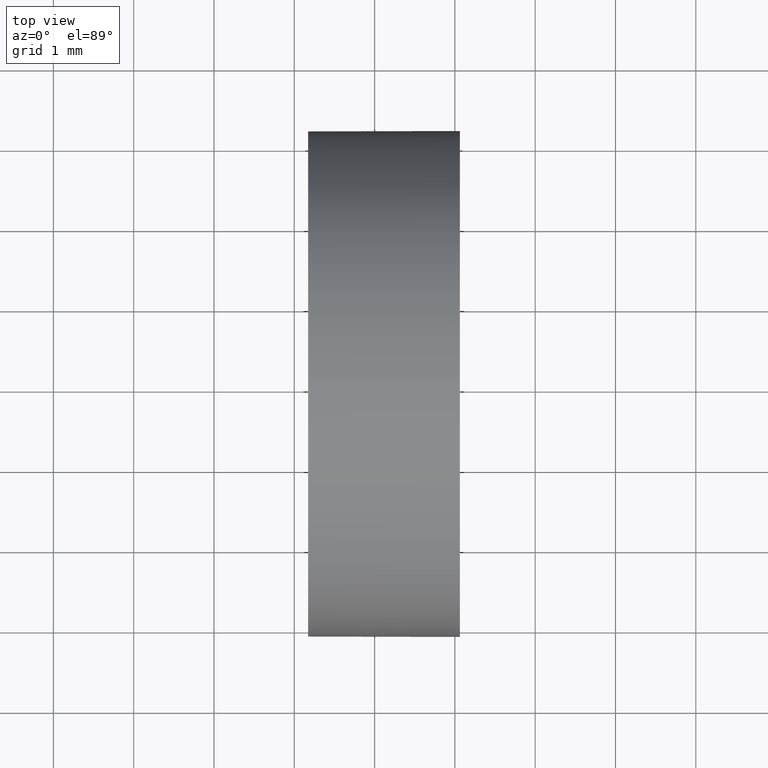
[diagram: clean part render]
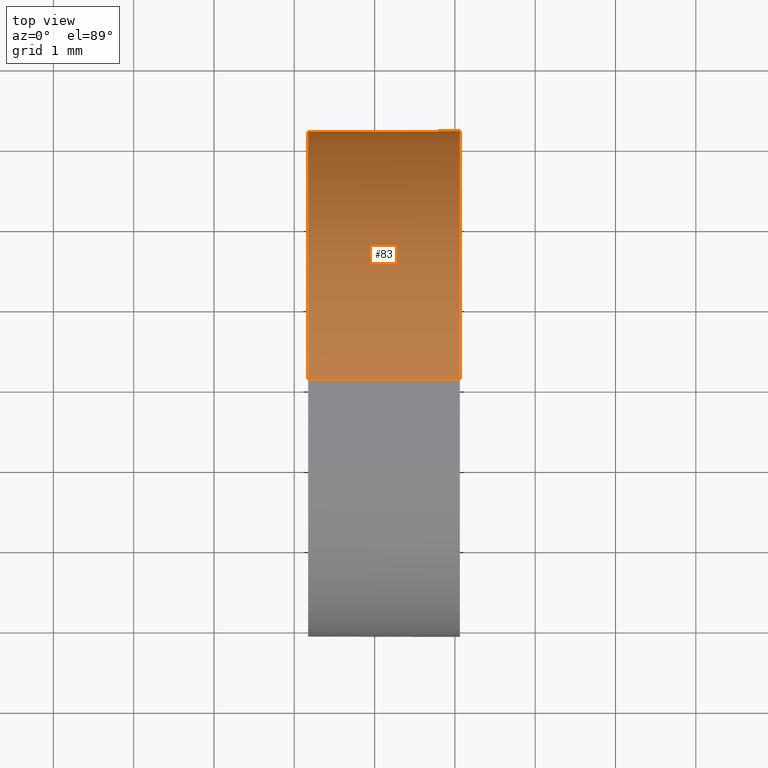
[diagram: same view with one face highlighted and labeled with its STEP entity id]
A machine part, top view. The second image highlights one B-rep face of the part: STEP entity #83.
In plain terms, the highlighted cylindrical surface (partial cylindrical patch) has radius 3.15 mm, axis along (-1, -0, -0).
Its self-contained STEP definition (entity closure, byte-faithful):
#8 = EDGE_CURVE ( 'NONE', #166, #110, #151, .T. ) ;
#11 = DIRECTION ( 'NONE',  ( 0.0000000000000000000, 0.0000000000000000000, 1.000000000000000000 ) ) ;
#12 = ORIENTED_EDGE ( 'NONE', *, *, #59, .T. ) ;
#15 = AXIS2_PLACEMENT_3D ( 'NONE', #44, #173, #45 ) ;
#19 = CARTESIAN_POINT ( 'NONE',  ( 24.06218947520228100, 13.04452057459747900, -3.150000000000001700 ) ) ;
#20 = CARTESIAN_POINT ( 'NONE',  ( 22.17218947520228100, 13.04452057459747900, -3.150000000000001700 ) ) ;
#21 = CARTESIAN_POINT ( 'NONE',  ( 24.06218947520228100, 13.04452057459747900, 0.0000000000000000000 ) ) ;
#24 = CIRCLE ( 'NONE', #26, 3.150000000000001700 ) ;
#26 = AXIS2_PLACEMENT_3D ( 'NONE', #21, #82, #146 ) ;
#28 = CYLINDRICAL_SURFACE ( 'NONE', #150, 3.150000000000001700 ) ;
#30 = CIRCLE ( 'NONE', #15, 3.150000000000001700 ) ;
#34 = EDGE_CURVE ( 'NONE', #110, #85, #30, .T. ) ;
#39 = CARTESIAN_POINT ( 'NONE',  ( 24.06218947520228100, 13.04452057459747900, 0.0000000000000000000 ) ) ;
#40 = ORIENTED_EDGE ( 'NONE', *, *, #8, .F. ) ;
#43 = DIRECTION ( 'NONE',  ( -1.000000000000000000, -0.0000000000000000000, -0.0000000000000000000 ) ) ;
#44 = CARTESIAN_POINT ( 'NONE',  ( 22.17218947520228100, 13.04452057459747900, 0.0000000000000000000 ) ) ;
#45 = DIRECTION ( 'NONE',  ( 0.0000000000000000000, 0.0000000000000000000, 1.000000000000000000 ) ) ;
#57 = VERTEX_POINT ( 'NONE', #19 ) ;
#59 = EDGE_CURVE ( 'NONE', #57, #85, #62, .T. ) ;
#62 = LINE ( 'NONE', #135, #142 ) ;
#68 = VERTEX_POINT ( 'NONE', #171 ) ;
#75 = EDGE_LOOP ( 'NONE', ( #101, #12, #136, #40, #183 ) ) ;
#81 = DIRECTION ( 'NONE',  ( -1.000000000000000000, -0.0000000000000000000, -0.0000000000000000000 ) ) ;
#82 = DIRECTION ( 'NONE',  ( -1.000000000000000000, -0.0000000000000000000, -0.0000000000000000000 ) ) ;
#83 = ADVANCED_FACE ( 'NONE', ( #118 ), #28, .T. ) ;
#85 = VERTEX_POINT ( 'NONE', #20 ) ;
#88 = CARTESIAN_POINT ( 'NONE',  ( 22.17218947520228100, 13.04452057459747900, 3.150000000000001700 ) ) ;
#89 = EDGE_CURVE ( 'NONE', #68, #57, #100, .T. ) ;
#100 = CIRCLE ( 'NONE', #133, 3.150000000000001700 ) ;
#101 = ORIENTED_EDGE ( 'NONE', *, *, #89, .T. ) ;
#104 = VECTOR ( 'NONE', #43, 1000.000000000000000 ) ;
#110 = VERTEX_POINT ( 'NONE', #88 ) ;
#117 = EDGE_CURVE ( 'NONE', #166, #68, #24, .T. ) ;
#118 = FACE_OUTER_BOUND ( 'NONE', #75, .T. ) ;
#133 = AXIS2_PLACEMENT_3D ( 'NONE', #39, #81, #11 ) ;
#135 = CARTESIAN_POINT ( 'NONE',  ( 21.22493055706841100, 13.04452057459747900, -3.150000000000001700 ) ) ;
#136 = ORIENTED_EDGE ( 'NONE', *, *, #34, .F. ) ;
#137 = DIRECTION ( 'NONE',  ( 0.0000000000000000000, 0.0000000000000000000, 1.000000000000000000 ) ) ;
#138 = DIRECTION ( 'NONE',  ( -1.000000000000000000, -0.0000000000000000000, -0.0000000000000000000 ) ) ;
#142 = VECTOR ( 'NONE', #138, 1000.000000000000000 ) ;
#145 = CARTESIAN_POINT ( 'NONE',  ( 24.06218947520228100, 13.04452057459747900, 3.150000000000001700 ) ) ;
#146 = DIRECTION ( 'NONE',  ( 0.0000000000000000000, 0.0000000000000000000, 1.000000000000000000 ) ) ;
#150 = AXIS2_PLACEMENT_3D ( 'NONE', #156, #160, #137 ) ;
#151 = LINE ( 'NONE', #162, #104 ) ;
#156 = CARTESIAN_POINT ( 'NONE',  ( 21.22493055706841100, 13.04452057459747900, 0.0000000000000000000 ) ) ;
#160 = DIRECTION ( 'NONE',  ( -1.000000000000000000, -0.0000000000000000000, -0.0000000000000000000 ) ) ;
#162 = CARTESIAN_POINT ( 'NONE',  ( 21.22493055706841100, 13.04452057459747900, 3.150000000000001700 ) ) ;
#166 = VERTEX_POINT ( 'NONE', #145 ) ;
#171 = CARTESIAN_POINT ( 'NONE',  ( 24.06218947520228100, 16.19452057459747600, 3.857637417314158300E-016 ) ) ;
#173 = DIRECTION ( 'NONE',  ( -1.000000000000000000, -0.0000000000000000000, -0.0000000000000000000 ) ) ;
#183 = ORIENTED_EDGE ( 'NONE', *, *, #117, .T. ) ;